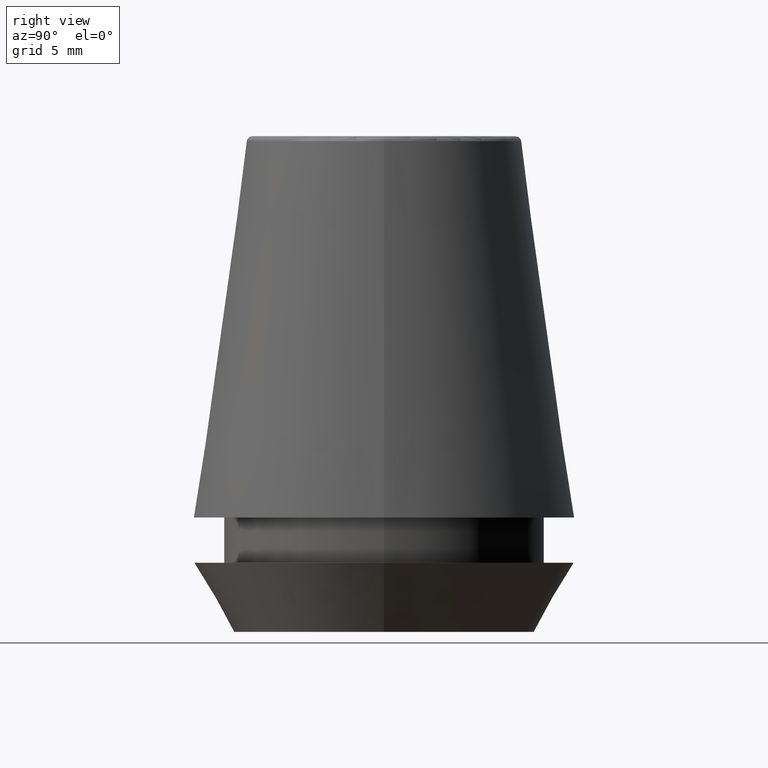
[diagram: clean part render]
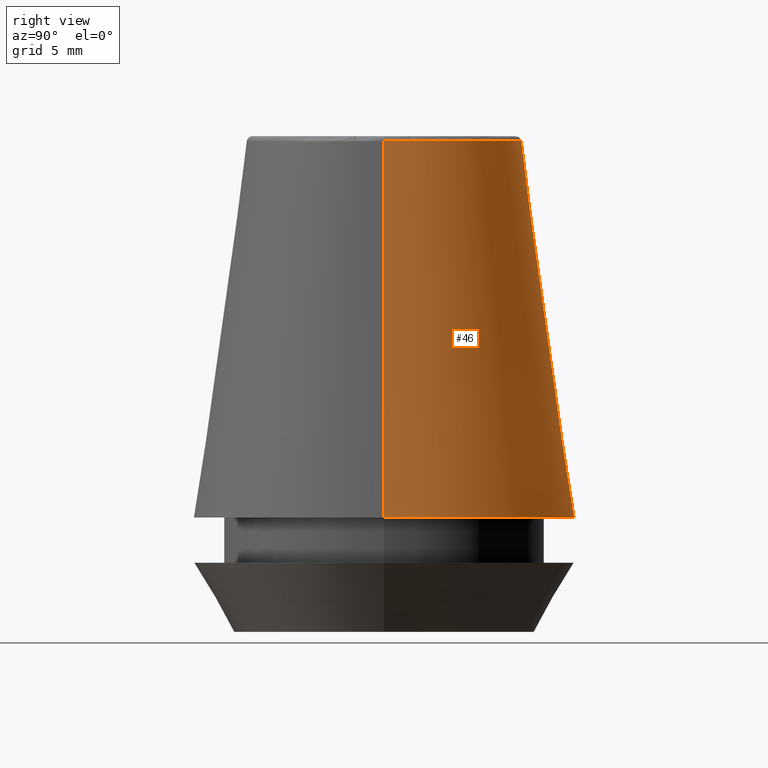
[diagram: same view with one face highlighted and labeled with its STEP entity id]
A machine part, right view. The second image highlights one B-rep face of the part: STEP entity #46.
In plain terms, the highlighted conical surface has half-angle 8 deg.
Its self-contained STEP definition (entity closure, byte-faithful):
#7 = DIRECTION ( 'NONE',  ( 0.1391731009600587800, 1.704378926181474000E-017, -0.9902680687415712500 ) ) ;
#9 = ORIENTED_EDGE ( 'NONE', *, *, #150, .F. ) ;
#14 = CONICAL_SURFACE ( 'NONE', #325, 13.03657776635556700, 0.1396263401595396500 ) ;
#28 = CARTESIAN_POINT ( 'NONE',  ( -13.03657776635556700, 0.0000000000000000000, 7.842050807568876200 ) ) ;
#38 = DIRECTION ( 'NONE',  ( 1.000000000000000000, 0.0000000000000000000, 0.0000000000000000000 ) ) ;
#42 = CIRCLE ( 'NONE', #340, 13.03657776635556700 ) ;
#45 = DIRECTION ( 'NONE',  ( -0.1391731009600587800, 0.0000000000000000000, -0.9902680687415712500 ) ) ;
#46 = ADVANCED_FACE ( 'NONE', ( #125 ), #14, .T. ) ;
#49 = EDGE_CURVE ( 'NONE', #144, #198, #42, .T. ) ;
#50 = CARTESIAN_POINT ( 'NONE',  ( 0.0000000000000000000, 0.0000000000000000000, 7.842050807568876200 ) ) ;
#53 = EDGE_CURVE ( 'NONE', #81, #198, #58, .T. ) ;
#58 = LINE ( 'NONE', #387, #181 ) ;
#73 = ORIENTED_EDGE ( 'NONE', *, *, #53, .F. ) ;
#74 = CIRCLE ( 'NONE', #373, 9.408710285118862900 ) ;
#78 = DIRECTION ( 'NONE',  ( 0.0000000000000000000, 0.0000000000000000000, -1.000000000000000000 ) ) ;
#81 = VERTEX_POINT ( 'NONE', #172 ) ;
#82 = DIRECTION ( 'NONE',  ( 1.000000000000000000, 0.0000000000000000000, 0.0000000000000000000 ) ) ;
#111 = CARTESIAN_POINT ( 'NONE',  ( 0.0000000000000000000, 0.0000000000000000000, 33.65566924038402900 ) ) ;
#118 = DIRECTION ( 'NONE',  ( -0.0000000000000000000, -0.0000000000000000000, 1.000000000000000000 ) ) ;
#125 = FACE_OUTER_BOUND ( 'NONE', #175, .T. ) ;
#129 = EDGE_CURVE ( 'NONE', #269, #144, #344, .T. ) ;
#143 = DIRECTION ( 'NONE',  ( -0.0000000000000000000, -0.0000000000000000000, 1.000000000000000000 ) ) ;
#144 = VERTEX_POINT ( 'NONE', #240 ) ;
#150 = EDGE_CURVE ( 'NONE', #269, #81, #74, .T. ) ;
#172 = CARTESIAN_POINT ( 'NONE',  ( -9.408710285118862900, 0.0000000000000000000, 33.65566924038402900 ) ) ;
#175 = EDGE_LOOP ( 'NONE', ( #9, #365, #206, #73 ) ) ;
#181 = VECTOR ( 'NONE', #45, 1000.000000000000000 ) ;
#191 = VECTOR ( 'NONE', #7, 1000.000000000000000 ) ;
#198 = VERTEX_POINT ( 'NONE', #28 ) ;
#206 = ORIENTED_EDGE ( 'NONE', *, *, #49, .T. ) ;
#228 = CARTESIAN_POINT ( 'NONE',  ( 9.408710285118862900, 1.374377508408924700E-015, 33.65566924038402900 ) ) ;
#240 = CARTESIAN_POINT ( 'NONE',  ( 13.03657776635556700, 1.596520323340289600E-015, 7.842050807568876200 ) ) ;
#269 = VERTEX_POINT ( 'NONE', #228 ) ;
#277 = CARTESIAN_POINT ( 'NONE',  ( 0.0000000000000000000, 0.0000000000000000000, 7.842050807568876200 ) ) ;
#318 = CARTESIAN_POINT ( 'NONE',  ( 13.03657776635556700, 1.596520323340289600E-015, 7.842050807568876200 ) ) ;
#325 = AXIS2_PLACEMENT_3D ( 'NONE', #277, #78, #336 ) ;
#336 = DIRECTION ( 'NONE',  ( -1.000000000000000000, 0.0000000000000000000, 0.0000000000000000000 ) ) ;
#340 = AXIS2_PLACEMENT_3D ( 'NONE', #50, #118, #82 ) ;
#344 = LINE ( 'NONE', #318, #191 ) ;
#365 = ORIENTED_EDGE ( 'NONE', *, *, #129, .T. ) ;
#373 = AXIS2_PLACEMENT_3D ( 'NONE', #111, #143, #38 ) ;
#387 = CARTESIAN_POINT ( 'NONE',  ( -13.03657776635556700, 0.0000000000000000000, 7.842050807568876200 ) ) ;